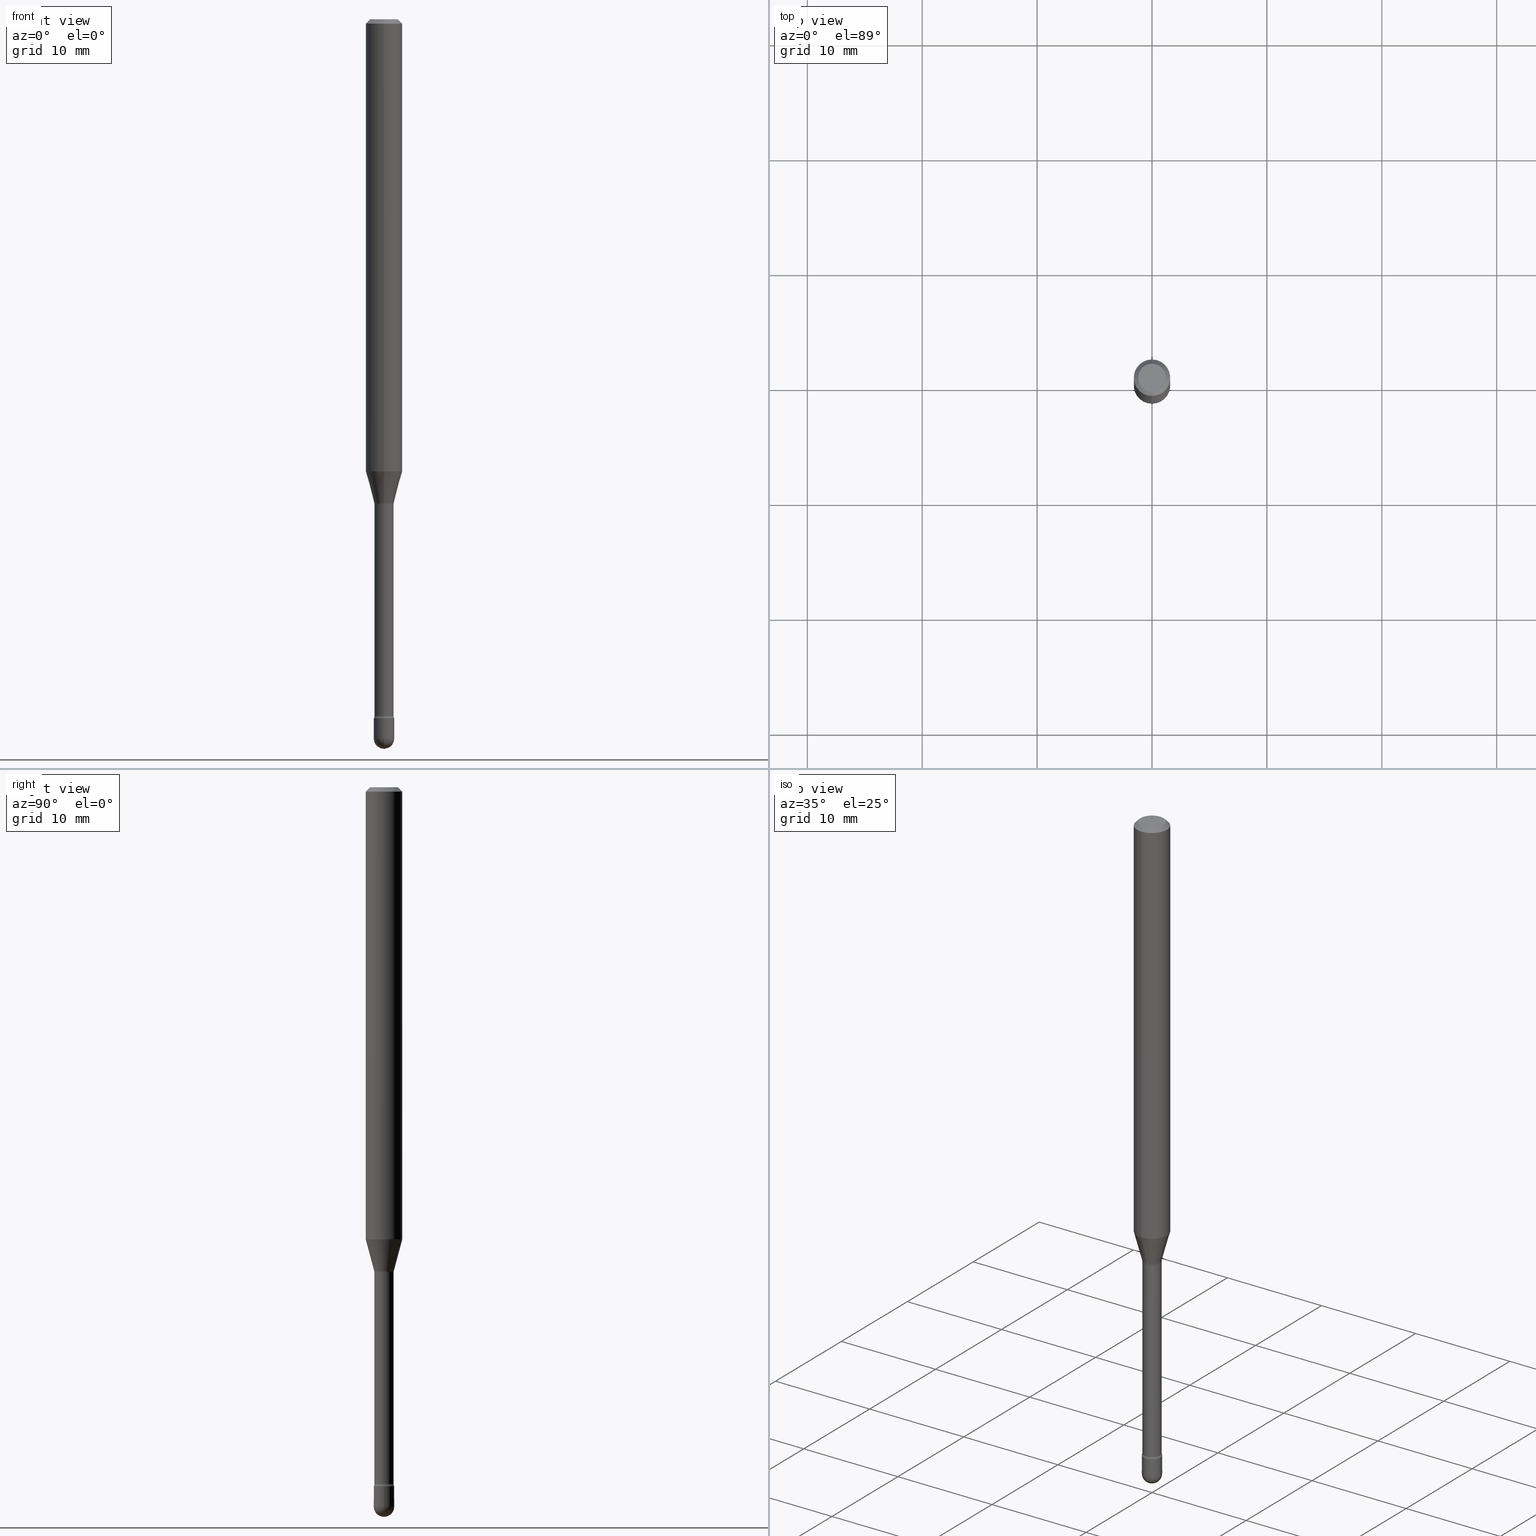
[diagram: canonical four-view strip — front | top / right | iso, engineering-drawing reading convention]
A machine part, canonical four-view strip (front | top / right | iso — engineering-drawing reading convention). The complete STEP part file that produces these views, byte-faithful:
ISO-10303-21;
HEADER;
FILE_DESCRIPTION (( 'STEP AP203' ),
    '1' );
FILE_NAME ('09511.STEP',
    '2024-04-10T00:04:07',
    ( '' ),
    ( '' ),
    'SwSTEP 2.0',
    'SolidWorks 2023',
    '' );
FILE_SCHEMA (( 'CONFIG_CONTROL_DESIGN' ));
ENDSEC;

DATA;
#1 = ORIENTED_EDGE ( 'NONE', *, *, #18, .T. ) ;
#2 = DIRECTION ( 'NONE',  ( 1.000000000000000000, -6.982962677686248567E-15, 0.000000000000000000 ) ) ;
#3 = EDGE_LOOP ( 'NONE', ( #102, #241, #486, #42 ) ) ;
#4 = EDGE_CURVE ( 'NONE', #137, #523, #278, .T. ) ;
#5 = EDGE_LOOP ( 'NONE', ( #397, #381, #75, #361 ) ) ;
#6 = FACE_OUTER_BOUND ( 'NONE', #318, .T. ) ;
#7 = DIRECTION ( 'NONE',  ( -6.982962677686265133E-15, -1.000000000000000000, 3.491411876045848246E-15 ) ) ;
#8 = DIRECTION ( 'NONE',  ( 1.000000000000000000, -6.982962677686265922E-15, 4.876176775795936353E-29 ) ) ;
#9 = EDGE_LOOP ( 'NONE', ( #357, #354, #50, #445 ) ) ;
#10 = DIRECTION ( 'NONE',  ( -2.445468806185136597E-29, 3.491481338843145583E-15, 1.000000000000000000 ) ) ;
#11 = DIRECTION ( 'NONE',  ( -6.982962677686265133E-15, -1.000000000000000000, 0.000000000000000000 ) ) ;
#12 = AXIS2_PLACEMENT_3D ( 'NONE', #213, #299, #253 ) ;
#13 = TOROIDAL_SURFACE ( 'NONE', #545, 0.04790000000000008834, 0.01500000000000003067 ) ;
#14 = APPROVAL_STATUS ( 'not_yet_approved' ) ;
#15 = DIRECTION ( 'NONE',  ( -2.445517311797238408E-29, 3.491411876045847852E-15, 1.000000000000000000 ) ) ;
#16 = DIRECTION ( 'NONE',  ( 1.000000000000000000, -6.982962677686248567E-15, 0.000000000000000000 ) ) ;
#17 = MANIFOLD_SOLID_BREP ( 'Body-Move/Copy2[1]', #116 ) ;
#18 = EDGE_CURVE ( 'NONE', #350, #392, #242, .T. ) ;
#19 = LINE ( 'NONE', #112, #465 ) ;
#20 = CIRCLE ( 'NONE', #220, 0.03290000000000006114 ) ;
#21 = AXIS2_PLACEMENT_3D ( 'NONE', #263, #80, #262 ) ;
#22 = CALENDAR_DATE ( 2024, 9, 4 ) ;
#23 = FACE_OUTER_BOUND ( 'NONE', #315, .T. ) ;
#24 = APPROVAL_ROLE ( '' ) ;
#25 = CARTESIAN_POINT ( 'NONE',  ( 4.440892098501006787E-16, 0.06249999999999995143, -0.01500000000000030129 ) ) ;
#26 = CARTESIAN_POINT ( 'NONE',  ( -3.773273898774340269E-16, -0.04749999999999999362, 8.309173255776074692E-17 ) ) ;
#27 = EDGE_CURVE ( 'NONE', #350, #481, #530, .T. ) ;
#28 = CIRCLE ( 'NONE', #373, 0.03500000000000000333 ) ;
#29 = ADVANCED_FACE ( 'NONE', ( #325 ), #152, .T. ) ;
#30 = CARTESIAN_POINT ( 'NONE',  ( -4.364351673553912750E-16, -0.06250000000000005551, -0.01499999999999986587 ) ) ;
#31 = APPROVAL ( #542, 'UNSPECIFIED' ) ;
#32 = CARTESIAN_POINT ( 'NONE',  ( 4.054893917681971331E-29, -5.789083852322656462E-15, -1.658092501787273410 ) ) ;
#33 = PLANE ( 'NONE',  #45 ) ;
#34 = EDGE_CURVE ( 'NONE', #324, #134, #296, .T. ) ;
#35 = AXIS2_PLACEMENT_3D ( 'NONE', #304, #270, #387 ) ;
#36 = CIRCLE ( 'NONE', #473, 0.04749999999999999362 ) ;
#37 = CARTESIAN_POINT ( 'NONE',  ( 2.337685600651315741E-16, 0.03289999999999419777, -1.661974787463811332 ) ) ;
#38 = VECTOR ( 'NONE', #182, 39.37007874015748143 ) ;
#39 = ORIENTED_EDGE ( 'NONE', *, *, #223, .T. ) ;
#40 = CARTESIAN_POINT ( 'NONE',  ( 2.444036937190796729E-16, 0.03499999999999140604, -2.464999999999999858 ) ) ;
#41 =( NAMED_UNIT ( * ) SI_UNIT ( $, .STERADIAN. ) SOLID_ANGLE_UNIT ( ) );
#42 = ORIENTED_EDGE ( 'NONE', *, *, #500, .F. ) ;
#43 = EDGE_CURVE ( 'NONE', #535, #137, #343, .T. ) ;
#44 = AXIS2_PLACEMENT_3D ( 'NONE', #257, #421, #371 ) ;
#45 = AXIS2_PLACEMENT_3D ( 'NONE', #517, #218, #388 ) ;
#46 = DIRECTION ( 'NONE',  ( -6.982962677686265922E-15, -1.000000000000000000, 3.491411876045847458E-15 ) ) ;
#47 = EDGE_CURVE ( 'NONE', #392, #311, #28, .T. ) ;
#48 = VERTEX_POINT ( 'NONE', #282 ) ;
#49 = MECHANICAL_CONTEXT ( 'NONE', #463, 'mechanical' ) ;
#50 = ORIENTED_EDGE ( 'NONE', *, *, #539, .T. ) ;
#51 = DIRECTION ( 'NONE',  ( -6.982962677686266711E-15, -1.000000000000000000, 3.491411876045848246E-15 ) ) ;
#52 = EDGE_LOOP ( 'NONE', ( #195, #235, #436, #287 ) ) ;
#53 = ORIENTED_EDGE ( 'NONE', *, *, #476, .F. ) ;
#54 =( NAMED_UNIT ( * ) PLANE_ANGLE_UNIT ( ) SI_UNIT ( $, .RADIAN. ) );
#55 = ORIENTED_EDGE ( 'NONE', *, *, #244, .T. ) ;
#56 = EDGE_CURVE ( 'NONE', #490, #284, #430, .T. ) ;
#57 = DIRECTION ( 'NONE',  ( -2.445517311797238408E-29, 3.491411876045847852E-15, 1.000000000000000000 ) ) ;
#58 = APPLICATION_PROTOCOL_DEFINITION ( 'international standard', 'config_control_design', 1994, #552 ) ;
#59 = ORIENTED_EDGE ( 'NONE', *, *, #395, .T. ) ;
#60 = DIRECTION ( 'NONE',  ( -2.445517311797238408E-29, 3.491411876045847852E-15, 1.000000000000000000 ) ) ;
#61 = AXIS2_PLACEMENT_3D ( 'NONE', #248, #424, #556 ) ;
#62 = CC_DESIGN_APPROVAL ( #31, ( #440 ) ) ;
#63 = COORDINATED_UNIVERSAL_TIME_OFFSET ( 5, 0, .BEHIND. ) ;
#64 = PLANE ( 'NONE',  #484 ) ;
#65 = PERSON_AND_ORGANIZATION ( #328, #240 ) ;
#66 = CARTESIAN_POINT ( 'NONE',  ( 3.789405609774286933E-29, -5.410051969494155627E-15, -1.549531296095961519 ) ) ;
#67 = CC_DESIGN_PERSON_AND_ORGANIZATION_ASSIGNMENT ( #378, #289, ( #431 ) ) ;
#68 = CARTESIAN_POINT ( 'NONE',  ( 5.838294968381408865E-29, -8.335206743429354077E-15, -2.387345589506696175 ) ) ;
#69 = AXIS2_PLACEMENT_3D ( 'NONE', #368, #288, #16 ) ;
#70 = CARTESIAN_POINT ( 'NONE',  ( 5.857013961754386162E-29, -8.361931443129805162E-15, -2.395000000000000018 ) ) ;
#71 = LINE ( 'NONE', #74, #531 ) ;
#72 = ADVANCED_FACE ( 'NONE', ( #189 ), #329, .T. ) ;
#73 = ADVANCED_FACE ( 'NONE', ( #323 ), #91, .T. ) ;
#74 = CARTESIAN_POINT ( 'NONE',  ( -4.287811248607203282E-16, -0.06250000000000005551, -0.01499999999999986587 ) ) ;
#75 = ORIENTED_EDGE ( 'NONE', *, *, #455, .T. ) ;
#76 = AXIS2_PLACEMENT_3D ( 'NONE', #185, #15, #46 ) ;
#77 = AXIS2_PLACEMENT_3D ( 'NONE', #87, #510, #130 ) ;
#78 = DIRECTION ( 'NONE',  ( -2.445517311797238408E-29, 3.491411876045847852E-15, 1.000000000000000000 ) ) ;
#79 = EDGE_CURVE ( 'NONE', #525, #481, #302, .T. ) ;
#80 = DIRECTION ( 'NONE',  ( -2.445517311797238408E-29, 3.491411876045847852E-15, 1.000000000000000000 ) ) ;
#81 = SPHERICAL_SURFACE ( 'NONE', #144, 0.03500000000000001721 ) ;
#82 = ORIENTED_EDGE ( 'NONE', *, *, #178, .F. ) ;
#83 = AXIS2_PLACEMENT_3D ( 'NONE', #376, #168, #550 ) ;
#84 = VECTOR ( 'NONE', #349, 39.37007874015748143 ) ;
#85 = DIRECTION ( 'NONE',  ( 6.982962677686265922E-15, 1.000000000000000000, 0.000000000000000000 ) ) ;
#86 = ORIENTED_EDGE ( 'NONE', *, *, #207, .F. ) ;
#87 = CARTESIAN_POINT ( 'NONE',  ( 6.028080607246362204E-29, -8.606501500248354960E-15, -2.464999999999999858 ) ) ;
#88 = EDGE_CURVE ( 'NONE', #520, #406, #364, .T. ) ;
#89 = ORIENTED_EDGE ( 'NONE', *, *, #43, .T. ) ;
#90 = DIRECTION ( 'NONE',  ( -2.445517311797238408E-29, 3.491411876045847852E-15, 1.000000000000000000 ) ) ;
#91 = CYLINDRICAL_SURFACE ( 'NONE', #76, 0.06250000000000000000 ) ;
#92 = ORIENTED_EDGE ( 'NONE', *, *, #300, .F. ) ;
#93 = PRODUCT ( '09511', '09511', '', ( #49 ) ) ;
#94 = AXIS2_PLACEMENT_3D ( 'NONE', #379, #551, #377 ) ;
#95 = AXIS2_PLACEMENT_3D ( 'NONE', #435, #215, #386 ) ;
#96 = CARTESIAN_POINT ( 'NONE',  ( 2.374002335562130443E-16, 0.03341111260565819002, -1.658092501787273410 ) ) ;
#97 = CLOSED_SHELL ( 'NONE', ( #442, #216, #548, #226, #162, #133, #422, #73, #72, #136, #460, #317, #480, #493 ) ) ;
#98 = ORIENTED_EDGE ( 'NONE', *, *, #4, .F. ) ;
#99 = ADVANCED_FACE ( 'NONE', ( #200 ), #193, .T. ) ;
#100 = CARTESIAN_POINT ( 'NONE',  ( 6.028080607246362204E-29, -8.606501500248354960E-15, -2.464999999999999858 ) ) ;
#101 = APPROVAL ( #14, 'UNSPECIFIED' ) ;
#102 = ORIENTED_EDGE ( 'NONE', *, *, #404, .T. ) ;
#103 = DIRECTION ( 'NONE',  ( 1.000000000000000000, -6.982962677686265922E-15, 4.876176775795935793E-29 ) ) ;
#104 = CARTESIAN_POINT ( 'NONE',  ( -2.333085523452841648E-16, -0.03341111260566976410, -1.658092501787273410 ) ) ;
#105 = DIRECTION ( 'NONE',  ( -6.982962677686266711E-15, -1.000000000000000000, 0.000000000000000000 ) ) ;
#106 = AXIS2_PLACEMENT_3D ( 'NONE', #413, #60, #522 ) ;
#107 = CIRCLE ( 'NONE', #297, 0.06250000000000000000 ) ;
#108 = DATE_AND_TIME ( #546, #555 ) ;
#109 = DIRECTION ( 'NONE',  ( -6.982962677686266711E-15, -1.000000000000000000, 3.491411876045848246E-15 ) ) ;
#110 = EDGE_CURVE ( 'NONE', #137, #535, #275, .T. ) ;
#111 = COORDINATED_UNIVERSAL_TIME_OFFSET ( 5, 0, .BEHIND. ) ;
#112 = CARTESIAN_POINT ( 'NONE',  ( 4.364351673553919652E-16, 0.06249999999999995143, -0.01500000000000030129 ) ) ;
#113 = FACE_OUTER_BOUND ( 'NONE', #518, .T. ) ;
#114 = AXIS2_PLACEMENT_3D ( 'NONE', #491, #483, #103 ) ;
#115 = CIRCLE ( 'NONE', #155, 0.03289999999999999869 ) ;
#116 = CLOSED_SHELL ( 'NONE', ( #305, #380, #99, #433, #29 ) ) ;
#117 = ORIENTED_EDGE ( 'NONE', *, *, #495, .T. ) ;
#118 = CALENDAR_DATE ( 2024, 9, 4 ) ;
#119 = DIRECTION ( 'NONE',  ( -2.445517311797238408E-29, 3.491411876045847852E-15, 1.000000000000000000 ) ) ;
#120 = CC_DESIGN_PERSON_AND_ORGANIZATION_ASSIGNMENT ( #283, #449, ( #93 ) ) ;
#121 = EDGE_LOOP ( 'NONE', ( #352, #55, #117, #166 ) ) ;
#122 = APPROVAL_DATE_TIME ( #506, #31 ) ;
#123 = DIRECTION ( 'NONE',  ( -2.445468806185136597E-29, 3.491481338843145583E-15, 1.000000000000000000 ) ) ;
#124 = DESIGN_CONTEXT ( 'detailed design', #552, 'design' ) ;
#125 = ORIENTED_EDGE ( 'NONE', *, *, #34, .F. ) ;
#126 = CARTESIAN_POINT ( 'NONE',  ( 6.028080607246362204E-29, -8.606501500248354960E-15, -2.464999999999999858 ) ) ;
#127 = CIRCLE ( 'NONE', #389, 0.03500000000000000333 ) ;
#128 = APPROVAL_PERSON_ORGANIZATION ( #382, #444, #252 ) ;
#129 = CARTESIAN_POINT ( 'NONE',  ( 5.838294968381408865E-29, -8.335206743429354077E-15, -2.387345589506696175 ) ) ;
#130 = DIRECTION ( 'NONE',  ( 6.982962677686265922E-15, 1.000000000000000000, 0.000000000000000000 ) ) ;
#131 = EDGE_LOOP ( 'NONE', ( #488, #529, #314, #477 ) ) ;
#132 = FACE_OUTER_BOUND ( 'NONE', #5, .T. ) ;
#133 = ADVANCED_FACE ( 'NONE', ( #370 ), #286, .T. ) ;
#134 = VERTEX_POINT ( 'NONE', #454 ) ;
#135 = EDGE_LOOP ( 'NONE', ( #447, #313 ) ) ;
#136 = ADVANCED_FACE ( 'NONE', ( #6 ), #64, .F. ) ;
#137 = VERTEX_POINT ( 'NONE', #138 ) ;
#138 = CARTESIAN_POINT ( 'NONE',  ( 3.407447217031568368E-16, 0.03341111260565819002, -1.658092501787273410 ) ) ;
#139 = EDGE_LOOP ( 'NONE', ( #224, #179, #402, #1, #151 ) ) ;
#140 = CARTESIAN_POINT ( 'NONE',  ( 2.023905576161309762E-45, -2.888822820202223953E-31, -8.275033155441702606E-17 ) ) ;
#141 = EDGE_CURVE ( 'NONE', #48, #350, #127, .T. ) ;
#142 = VERTEX_POINT ( 'NONE', #30 ) ;
#143 = FACE_OUTER_BOUND ( 'NONE', #267, .T. ) ;
#144 = AXIS2_PLACEMENT_3D ( 'NONE', #126, #427, #85 ) ;
#145 = ORIENTED_EDGE ( 'NONE', *, *, #197, .F. ) ;
#146 = AXIS2_PLACEMENT_3D ( 'NONE', #528, #10, #2 ) ;
#147 = CARTESIAN_POINT ( 'NONE',  ( 0.000000000000000000, 0.000000000000000000, 0.000000000000000000 ) ) ;
#148 = DIRECTION ( 'NONE',  ( 1.000000000000000000, 0.000000000000000000, 0.000000000000000000 ) ) ;
#149 = ORIENTED_EDGE ( 'NONE', *, *, #244, .F. ) ;
#150 = DIRECTION ( 'NONE',  ( -2.445468806185136877E-29, 3.491481338843145188E-15, 1.000000000000000000 ) ) ;
#151 = ORIENTED_EDGE ( 'NONE', *, *, #513, .F. ) ;
#152 = CYLINDRICAL_SURFACE ( 'NONE', #496, 0.03500000000000000333 ) ;
#153 = CARTESIAN_POINT ( 'NONE',  ( -1.169113584055446105E-44, 1.669184350826100908E-30, 4.780733988912460139E-16 ) ) ;
#154 = CIRCLE ( 'NONE', #12, 0.06250000000000000000 ) ;
#155 = AXIS2_PLACEMENT_3D ( 'NONE', #428, #176, #222 ) ;
#156 = CARTESIAN_POINT ( 'NONE',  ( 2.486899575160936616E-16, 0.03499999999999165584, -2.395000000000000018 ) ) ;
#157 = PRODUCT_DEFINITION_SHAPE ( 'NONE', 'NONE',  #201 ) ;
#158 = DIRECTION ( 'NONE',  ( 4.937700262164548042E-15, 0.7071067811865451302, -0.7071067811865499042 ) ) ;
#159 = EDGE_CURVE ( 'NONE', #324, #142, #71, .T. ) ;
#160 = APPROVAL_ROLE ( '' ) ;
#161 = DIRECTION ( 'NONE',  ( 6.982962677686265922E-15, 1.000000000000000000, -3.483106191921935554E-15 ) ) ;
#162 = ADVANCED_FACE ( 'NONE', ( #113 ), #501, .T. ) ;
#163 = UNCERTAINTY_MEASURE_WITH_UNIT (LENGTH_MEASURE( 1.000000000000000082E-05 ), #233, 'distance_accuracy_value', 'NONE');
#164 = VECTOR ( 'NONE', #446, 39.37007874015748143 ) ;
#165 = VECTOR ( 'NONE', #273, 39.37007874015748854 ) ;
#166 = ORIENTED_EDGE ( 'NONE', *, *, #395, .F. ) ;
#167 = PERSON_AND_ORGANIZATION ( #328, #240 ) ;
#168 = DIRECTION ( 'NONE',  ( -2.445517311797238408E-29, 3.491411876045847852E-15, 1.000000000000000000 ) ) ;
#169 = CARTESIAN_POINT ( 'NONE',  ( 4.064307499408922751E-29, -5.802753956057700708E-15, -1.661974787463811332 ) ) ;
#170 = CC_DESIGN_PERSON_AND_ORGANIZATION_ASSIGNMENT ( #245, #202, ( #201 ) ) ;
#171 = DIRECTION ( 'NONE',  ( -6.982962677686266711E-15, -1.000000000000000000, 0.000000000000000000 ) ) ;
#172 = CIRCLE ( 'NONE', #35, 0.01500000000000001853 ) ;
#173 = AXIS2_PLACEMENT_3D ( 'NONE', #347, #308, #312 ) ;
#174 = LINE ( 'NONE', #346, #84 ) ;
#175 = VERTEX_POINT ( 'NONE', #333 ) ;
#176 = DIRECTION ( 'NONE',  ( -2.445517311797238408E-29, 3.491411876045847852E-15, 1.000000000000000000 ) ) ;
#177 = ORIENTED_EDGE ( 'NONE', *, *, #264, .T. ) ;
#178 = EDGE_CURVE ( 'NONE', #554, #523, #154, .T. ) ;
#179 = ORIENTED_EDGE ( 'NONE', *, *, #537, .T. ) ;
#180 = AXIS2_PLACEMENT_3D ( 'NONE', #285, #540, #401 ) ;
#181 = AXIS2_PLACEMENT_3D ( 'NONE', #169, #412, #7 ) ;
#182 = DIRECTION ( 'NONE',  ( -2.445517311797238688E-29, 3.491411876045848246E-15, 1.000000000000000000 ) ) ;
#183 = ORIENTED_EDGE ( 'NONE', *, *, #199, .T. ) ;
#184 = CARTESIAN_POINT ( 'NONE',  ( -2.297394720958374770E-16, -0.03290000000000579961, -1.661974787463811332 ) ) ;
#185 = CARTESIAN_POINT ( 'NONE',  ( -1.169113584055446105E-44, 1.669184350826100908E-30, 4.780733988912460139E-16 ) ) ;
#186 = ORIENTED_EDGE ( 'NONE', *, *, #110, .T. ) ;
#187 = CARTESIAN_POINT ( 'NONE',  ( 6.115168556468905002E-29, -8.726560215209356888E-15, -2.500000000000000000 ) ) ;
#188 = ORIENTED_EDGE ( 'NONE', *, *, #557, .T. ) ;
#189 = FACE_OUTER_BOUND ( 'NONE', #372, .T. ) ;
#190 = ORIENTED_EDGE ( 'NONE', *, *, #508, .T. ) ;
#191 = CARTESIAN_POINT ( 'NONE',  ( -4.364351673553540013E-16, -0.06250000000000544009, -1.549531296095961297 ) ) ;
#192 = CC_DESIGN_APPROVAL ( #444, ( #431 ) ) ;
#193 = PLANE ( 'NONE',  #114 ) ;
#194 = CARTESIAN_POINT ( 'NONE',  ( 5.856897790813402508E-29, -8.362097806529333416E-15, -2.395000000000000018 ) ) ;
#195 = ORIENTED_EDGE ( 'NONE', *, *, #79, .F. ) ;
#196 = ORIENTED_EDGE ( 'NONE', *, *, #260, .F. ) ;
#197 = EDGE_CURVE ( 'NONE', #284, #274, #410, .T. ) ;
#198 = DATE_TIME_ROLE ( 'classification_date' ) ;
#199 = EDGE_CURVE ( 'NONE', #134, #324, #36, .T. ) ;
#200 = FACE_OUTER_BOUND ( 'NONE', #135, .T. ) ;
#201 = PRODUCT_DEFINITION ( 'UNKNOWN', '', #431, #124 ) ;
#202 = PERSON_AND_ORGANIZATION_ROLE ( 'creator' ) ;
#203 = LINE ( 'NONE', #547, #439 ) ;
#204 = CIRCLE ( 'NONE', #383, 0.06250000000000000000 ) ;
#205 = LOCAL_TIME ( 20, 4, 7.000000000000000000, #456 ) ;
#206 = CYLINDRICAL_SURFACE ( 'NONE', #94, 0.03500000000000000333 ) ;
#207 = EDGE_CURVE ( 'NONE', #348, #274, #309, .T. ) ;
#208 = SHAPE_DEFINITION_REPRESENTATION ( #157, #227 ) ;
#209 = DIRECTION ( 'NONE',  ( -2.445468806185136877E-29, 3.491481338843145188E-15, 1.000000000000000000 ) ) ;
#210 = MANIFOLD_SOLID_BREP ( 'Body-Move/Copy2[2]', #97 ) ;
#211 = EDGE_LOOP ( 'NONE', ( #145, #355 ) ) ;
#212 = CALENDAR_DATE ( 2024, 9, 4 ) ;
#213 = CARTESIAN_POINT ( 'NONE',  ( 3.789405609774286933E-29, -5.410051969494155627E-15, -1.549531296095961519 ) ) ;
#214 = CIRCLE ( 'NONE', #61, 0.03500000000000001721 ) ;
#215 = DIRECTION ( 'NONE',  ( -2.445468806185136597E-29, 3.491481338843145583E-15, 1.000000000000000000 ) ) ;
#216 = ADVANCED_FACE ( 'NONE', ( #295 ), #384, .T. ) ;
#217 = DIRECTION ( 'NONE',  ( -2.445517311797238408E-29, 3.491411876045847852E-15, 1.000000000000000000 ) ) ;
#218 = DIRECTION ( 'NONE',  ( -2.445517311797237847E-29, 3.491411876045848246E-15, 1.000000000000000000 ) ) ;
#219 = VECTOR ( 'NONE', #150, 39.37007874015748143 ) ;
#220 = AXIS2_PLACEMENT_3D ( 'NONE', #68, #250, #419 ) ;
#221 = CIRCLE ( 'NONE', #398, 0.03290000000000006114 ) ;
#222 = DIRECTION ( 'NONE',  ( -6.982962677686265133E-15, -1.000000000000000000, 0.000000000000000000 ) ) ;
#223 = EDGE_CURVE ( 'NONE', #274, #284, #351, .T. ) ;
#224 = ORIENTED_EDGE ( 'NONE', *, *, #264, .F. ) ;
#225 = CARTESIAN_POINT ( 'NONE',  ( -2.297394720958201714E-16, -0.03290000000000839475, -2.387345589506696175 ) ) ;
#226 = ADVANCED_FACE ( 'NONE', ( #543 ), #251, .T. ) ;
#227 = ADVANCED_BREP_SHAPE_REPRESENTATION ( '09511', ( #17, #210, #562 ), #276 ) ;
#228 = ORIENTED_EDGE ( 'NONE', *, *, #260, .T. ) ;
#229 = VERTEX_POINT ( 'NONE', #25 ) ;
#230 = ORIENTED_EDGE ( 'NONE', *, *, #495, .F. ) ;
#231 = AXIS2_PLACEMENT_3D ( 'NONE', #100, #479, #246 ) ;
#232 = VECTOR ( 'NONE', #396, 39.37007874015748143 ) ;
#233 =( CONVERSION_BASED_UNIT ( 'INCH', #437 ) LENGTH_UNIT ( ) NAMED_UNIT ( #563 ) );
#234 = CARTESIAN_POINT ( 'NONE',  ( 3.668275967695877755E-31, -5.237117814068800744E-17, -0.01500000000000008271 ) ) ;
#235 = ORIENTED_EDGE ( 'NONE', *, *, #243, .T. ) ;
#236 = DIRECTION ( 'NONE',  ( 2.445517311797237847E-29, -3.491411876045848246E-15, -1.000000000000000000 ) ) ;
#237 = ORIENTED_EDGE ( 'NONE', *, *, #363, .F. ) ;
#238 = CARTESIAN_POINT ( 'NONE',  ( 4.064388114513286773E-29, -5.802638510639924192E-15, -1.661974787463811332 ) ) ;
#239 = PERSON_AND_ORGANIZATION ( #328, #240 ) ;
#240 = ORGANIZATION ( 'UNSPECIFIED', 'UNSPECIFIED', '' ) ;
#241 = ORIENTED_EDGE ( 'NONE', *, *, #476, .T. ) ;
#242 = LINE ( 'NONE', #536, #219 ) ;
#243 = EDGE_CURVE ( 'NONE', #525, #48, #214, .T. ) ;
#244 = EDGE_CURVE ( 'NONE', #523, #554, #204, .T. ) ;
#245 = PERSON_AND_ORGANIZATION ( #328, #240 ) ;
#246 = DIRECTION ( 'NONE',  ( 6.982962677686265922E-15, 1.000000000000000000, 0.000000000000000000 ) ) ;
#247 = CC_DESIGN_DATE_AND_TIME_ASSIGNMENT ( #374, #198, ( #440 ) ) ;
#248 = CARTESIAN_POINT ( 'NONE',  ( 6.028080607246362204E-29, -8.606501500248354960E-15, -2.464999999999999858 ) ) ;
#249 = APPROVAL_DATE_TIME ( #452, #101 ) ;
#250 = DIRECTION ( 'NONE',  ( -2.445517311797238408E-29, 3.491411876045847852E-15, 1.000000000000000000 ) ) ;
#251 = CONICAL_SURFACE ( 'NONE', #294, 0.06250000000000000000, 0.7853981633974483900 ) ;
#252 = APPROVAL_ROLE ( '' ) ;
#253 = DIRECTION ( 'NONE',  ( -6.982962677686265922E-15, -1.000000000000000000, 4.370956789862821150E-15 ) ) ;
#254 = EDGE_LOOP ( 'NONE', ( #125, #434, #474, #196 ) ) ;
#255 = DIRECTION ( 'NONE',  ( 2.445517311797238408E-29, -3.491411876045847852E-15, -1.000000000000000000 ) ) ;
#256 = ORIENTED_EDGE ( 'NONE', *, *, #199, .F. ) ;
#257 = CARTESIAN_POINT ( 'NONE',  ( -1.169113584055446105E-44, 1.669184350826100908E-30, 4.780733988912460139E-16 ) ) ;
#258 = AXIS2_PLACEMENT_3D ( 'NONE', #238, #526, #11 ) ;
#259 = TOROIDAL_SURFACE ( 'NONE', #21, 0.04789999999999999813, 0.01500000000000002373 ) ;
#260 = EDGE_CURVE ( 'NONE', #134, #229, #19, .T. ) ;
#261 = FACE_OUTER_BOUND ( 'NONE', #423, .T. ) ;
#262 = DIRECTION ( 'NONE',  ( -6.982962677686265133E-15, -1.000000000000000000, 3.491411876045848246E-15 ) ) ;
#263 = CARTESIAN_POINT ( 'NONE',  ( 4.064307499408922751E-29, -5.802753956057700708E-15, -1.661974787463811332 ) ) ;
#264 = EDGE_CURVE ( 'NONE', #175, #311, #203, .T. ) ;
#265 = AXIS2_PLACEMENT_3D ( 'NONE', #358, #327, #105 ) ;
#266 = AXIS2_PLACEMENT_3D ( 'NONE', #32, #217, #171 ) ;
#267 = EDGE_LOOP ( 'NONE', ( #92, #453, #39, #408 ) ) ;
#268 = CARTESIAN_POINT ( 'NONE',  ( 3.668275967695877755E-31, -5.237117814068800744E-17, -0.01500000000000008271 ) ) ;
#269 = ORIENTED_EDGE ( 'NONE', *, *, #508, .F. ) ;
#270 = DIRECTION ( 'NONE',  ( 1.000000000000000000, -7.105427357601001070E-15, 4.926314657868158942E-29 ) ) ;
#271 = EDGE_LOOP ( 'NONE', ( #53, #399, #441, #432 ) ) ;
#272 = DIRECTION ( 'NONE',  ( -6.982962677686265922E-15, -1.000000000000000000, 3.491411876045847852E-15 ) ) ;
#273 = DIRECTION ( 'NONE',  ( 1.839019923739595582E-15, 0.2588190451025242922, 0.9659258262890673130 ) ) ;
#274 = VERTEX_POINT ( 'NONE', #156 ) ;
#275 = CIRCLE ( 'NONE', #180, 0.03341111260566397706 ) ;
#276 =( GEOMETRIC_REPRESENTATION_CONTEXT ( 3 ) GLOBAL_UNCERTAINTY_ASSIGNED_CONTEXT ( ( #163 ) ) GLOBAL_UNIT_ASSIGNED_CONTEXT ( ( #233, #54, #41 ) ) REPRESENTATION_CONTEXT ( 'NONE', 'WORKASPACE' ) );
#277 = APPLICATION_PROTOCOL_DEFINITION ( 'international standard', 'config_control_design', 1994, #463 ) ;
#278 = LINE ( 'NONE', #96, #165 ) ;
#279 = ORIENTED_EDGE ( 'NONE', *, *, #56, .T. ) ;
#280 = LINE ( 'NONE', #369, #232 ) ;
#281 = ORIENTED_EDGE ( 'NONE', *, *, #472, .T. ) ;
#282 = CARTESIAN_POINT ( 'NONE',  ( -2.486899575159748395E-16, -0.03500000000000861450, -2.464999999999999858 ) ) ;
#283 = PERSON_AND_ORGANIZATION ( #328, #240 ) ;
#284 = VERTEX_POINT ( 'NONE', #340 ) ;
#285 = CARTESIAN_POINT ( 'NONE',  ( 4.054893917681971331E-29, -5.789083852322656462E-15, -1.658092501787273410 ) ) ;
#286 = CONICAL_SURFACE ( 'NONE', #265, 0.03341111260566397706, 0.2617993877991495744 ) ;
#287 = ORIENTED_EDGE ( 'NONE', *, *, #472, .F. ) ;
#288 = DIRECTION ( 'NONE',  ( -2.445468806185136597E-29, 3.491481338843145583E-15, 1.000000000000000000 ) ) ;
#289 = PERSON_AND_ORGANIZATION_ROLE ( 'creator' ) ;
#290 = DIRECTION ( 'NONE',  ( -2.445517311797238408E-29, 3.491411876045847852E-15, 1.000000000000000000 ) ) ;
#291 = DIRECTION ( 'NONE',  ( 7.105427357601001859E-15, 1.000000000000000000, 0.000000000000000000 ) ) ;
#292 = CC_DESIGN_DATE_AND_TIME_ASSIGNMENT ( #108, #330, ( #201 ) ) ;
#293 = COORDINATED_UNIVERSAL_TIME_OFFSET ( 5, 0, .BEHIND. ) ;
#294 = AXIS2_PLACEMENT_3D ( 'NONE', #332, #255, #161 ) ;
#295 = FACE_OUTER_BOUND ( 'NONE', #3, .T. ) ;
#296 = CIRCLE ( 'NONE', #502, 0.04749999999999999362 ) ;
#297 = AXIS2_PLACEMENT_3D ( 'NONE', #268, #78, #429 ) ;
#298 = DIRECTION ( 'NONE',  ( -6.982962677686265922E-15, -1.000000000000000000, 4.370956789862821150E-15 ) ) ;
#299 = DIRECTION ( 'NONE',  ( -2.445517311797238408E-29, 3.491411876045847852E-15, 1.000000000000000000 ) ) ;
#300 = EDGE_CURVE ( 'NONE', #348, #490, #20, .T. ) ;
#301 = DIRECTION ( 'NONE',  ( -6.982962677686265922E-15, -1.000000000000000000, 3.491411876045847852E-15 ) ) ;
#302 = CIRCLE ( 'NONE', #231, 0.03500000000000001721 ) ;
#303 = APPROVAL_PERSON_ORGANIZATION ( #239, #101, #160 ) ;
#304 = CARTESIAN_POINT ( 'NONE',  ( 3.403499704291285528E-16, 0.04789999999999419028, -1.661974787463811554 ) ) ;
#305 = ADVANCED_FACE ( 'NONE', ( #23 ), #206, .T. ) ;
#306 = FACE_OUTER_BOUND ( 'NONE', #131, .T. ) ;
#307 = ORIENTED_EDGE ( 'NONE', *, *, #197, .T. ) ;
#308 = DIRECTION ( 'NONE',  ( -2.445517311797238408E-29, 3.491411876045847852E-15, 1.000000000000000000 ) ) ;
#309 = CIRCLE ( 'NONE', #544, 0.01500000000000002720 ) ;
#310 = LOCAL_TIME ( 20, 4, 7.000000000000000000, #293 ) ;
#311 = VERTEX_POINT ( 'NONE', #335 ) ;
#312 = DIRECTION ( 'NONE',  ( -6.982962677686266711E-15, -1.000000000000000000, 3.491411876045845880E-15 ) ) ;
#313 = ORIENTED_EDGE ( 'NONE', *, *, #513, .T. ) ;
#314 = ORIENTED_EDGE ( 'NONE', *, *, #27, .F. ) ;
#315 = EDGE_LOOP ( 'NONE', ( #281, #177, #450, #527, #533 ) ) ;
#316 = CARTESIAN_POINT ( 'NONE',  ( 6.028080607246362204E-29, -8.606501500248354960E-15, -2.464999999999999858 ) ) ;
#317 = ADVANCED_FACE ( 'NONE', ( #338 ), #509, .F. ) ;
#318 = EDGE_LOOP ( 'NONE', ( #183, #359 ) ) ;
#319 = DIRECTION ( 'NONE',  ( -6.982962677686267499E-15, -1.000000000000000000, 0.000000000000000000 ) ) ;
#320 = ORIENTED_EDGE ( 'NONE', *, *, #159, .F. ) ;
#321 = AXIS2_PLACEMENT_3D ( 'NONE', #466, #561, #469 ) ;
#322 = DIRECTION ( 'NONE',  ( -6.982962677686267499E-15, -1.000000000000000000, 0.000000000000000000 ) ) ;
#323 = FACE_OUTER_BOUND ( 'NONE', #121, .T. ) ;
#324 = VERTEX_POINT ( 'NONE', #26 ) ;
#325 = FACE_OUTER_BOUND ( 'NONE', #139, .T. ) ;
#326 = CARTESIAN_POINT ( 'NONE',  ( -4.364351673553916201E-16, -0.06250000000000000000, 6.962866411441115293E-16 ) ) ;
#327 = DIRECTION ( 'NONE',  ( -2.445517311797238408E-29, 3.491411876045847852E-15, 1.000000000000000000 ) ) ;
#328 = PERSON ( 'UNSPECIFIED', 'UNSPECIFIED', 'UNSPECIFIED', ('UNSPECIFIED'), ('UNSPECIFIED'), ('UNSPECIFIED') ) ;
#329 = CONICAL_SURFACE ( 'NONE', #425, 0.06250000000000000000, 0.7853981633974483900 ) ;
#330 = DATE_TIME_ROLE ( 'creation_date' ) ;
#331 = CONICAL_SURFACE ( 'NONE', #266, 0.03341111260566397706, 0.2617993877991495744 ) ;
#332 = CARTESIAN_POINT ( 'NONE',  ( 3.668275967695877755E-31, -5.237117814068800744E-17, -0.01500000000000008271 ) ) ;
#333 = CARTESIAN_POINT ( 'NONE',  ( -0.03500000000000000333, -8.235609695872808902E-15, -2.464999999999999858 ) ) ;
#334 = SECURITY_CLASSIFICATION_LEVEL ( 'unclassified' ) ;
#335 = CARTESIAN_POINT ( 'NONE',  ( -0.03500000000000000333, -8.235609695872808902E-15, -2.395000000000000018 ) ) ;
#336 = APPROVAL_STATUS ( 'not_yet_approved' ) ;
#337 = AXIS2_PLACEMENT_3D ( 'NONE', #405, #409, #319 ) ;
#338 = FACE_OUTER_BOUND ( 'NONE', #394, .T. ) ;
#339 = DATE_AND_TIME ( #22, #461 ) ;
#340 = CARTESIAN_POINT ( 'NONE',  ( -2.444036937189609493E-16, -0.03500000000000837858, -2.395000000000000018 ) ) ;
#341 = CARTESIAN_POINT ( 'NONE',  ( 2.412292587906127904E-16, 0.03289999999999172753, -2.387345589506696175 ) ) ;
#342 = SPHERICAL_SURFACE ( 'NONE', #77, 0.03500000000000001721 ) ;
#343 = CIRCLE ( 'NONE', #106, 0.03341111260566397706 ) ;
#344 = EDGE_CURVE ( 'NONE', #137, #406, #172, .T. ) ;
#345 = CIRCLE ( 'NONE', #411, 0.01500000000000001853 ) ;
#346 = CARTESIAN_POINT ( 'NONE',  ( 2.337685600650730998E-16, 0.03290000000000002645, 3.632059481693375614E-16 ) ) ;
#347 = CARTESIAN_POINT ( 'NONE',  ( -1.169113584055446105E-44, 1.669184350826100908E-30, 4.780733988912460139E-16 ) ) ;
#348 = VERTEX_POINT ( 'NONE', #341 ) ;
#349 = DIRECTION ( 'NONE',  ( -2.445517311797238688E-29, 3.491411876045848246E-15, 1.000000000000000000 ) ) ;
#350 = VERTEX_POINT ( 'NONE', #393 ) ;
#351 = CIRCLE ( 'NONE', #459, 0.03500000000000000333 ) ;
#352 = ORIENTED_EDGE ( 'NONE', *, *, #557, .F. ) ;
#353 = LINE ( 'NONE', #521, #503 ) ;
#354 = ORIENTED_EDGE ( 'NONE', *, *, #43, .F. ) ;
#355 = ORIENTED_EDGE ( 'NONE', *, *, #223, .F. ) ;
#356 = DIRECTION ( 'NONE',  ( -1.000000000000000000, 6.982962677686265922E-15, -4.883557194083112340E-29 ) ) ;
#357 = ORIENTED_EDGE ( 'NONE', *, *, #344, .F. ) ;
#358 = CARTESIAN_POINT ( 'NONE',  ( 4.054893917681971331E-29, -5.789083852322656462E-15, -1.658092501787273410 ) ) ;
#359 = ORIENTED_EDGE ( 'NONE', *, *, #34, .T. ) ;
#360 = DIRECTION ( 'NONE',  ( 1.000000000000000000, -6.982962677686276966E-15, 0.000000000000000000 ) ) ;
#361 = ORIENTED_EDGE ( 'NONE', *, *, #539, .F. ) ;
#362 = DIRECTION ( 'NONE',  ( -2.445468806185136597E-29, 3.491481338843145583E-15, 1.000000000000000000 ) ) ;
#363 = EDGE_CURVE ( 'NONE', #142, #229, #560, .T. ) ;
#364 = CIRCLE ( 'NONE', #258, 0.03289999999999999869 ) ;
#365 = CC_DESIGN_APPROVAL ( #101, ( #201 ) ) ;
#366 = DIRECTION ( 'NONE',  ( 0.000000000000000000, 0.000000000000000000, 1.000000000000000000 ) ) ;
#367 = ORIENTED_EDGE ( 'NONE', *, *, #4, .T. ) ;
#368 = CARTESIAN_POINT ( 'NONE',  ( 6.028080607246362204E-29, -8.606501500248354960E-15, -2.464999999999999858 ) ) ;
#369 = CARTESIAN_POINT ( 'NONE',  ( -2.297394720958783499E-16, -0.03290000000000002645, 5.929408496131545157E-16 ) ) ;
#370 = FACE_OUTER_BOUND ( 'NONE', #565, .T. ) ;
#371 = DIRECTION ( 'NONE',  ( -6.982962677686266711E-15, -1.000000000000000000, 3.491411876045845880E-15 ) ) ;
#372 = EDGE_LOOP ( 'NONE', ( #320, #256, #228, #59 ) ) ;
#373 = AXIS2_PLACEMENT_3D ( 'NONE', #451, #362, #448 ) ;
#374 = DATE_AND_TIME ( #118, #205 ) ;
#375 = LOCAL_TIME ( 20, 4, 7.000000000000000000, #63 ) ;
#376 = CARTESIAN_POINT ( 'NONE',  ( 5.857013961754386162E-29, -8.361931443129805162E-15, -2.395000000000000018 ) ) ;
#377 = DIRECTION ( 'NONE',  ( 1.000000000000000000, -6.982962677686265922E-15, 4.876176775795936353E-29 ) ) ;
#378 = PERSON_AND_ORGANIZATION ( #328, #240 ) ;
#379 = CARTESIAN_POINT ( 'NONE',  ( 0.000000000000000000, 0.000000000000000000, 0.000000000000000000 ) ) ;
#380 = ADVANCED_FACE ( 'NONE', ( #475 ), #81, .T. ) ;
#381 = ORIENTED_EDGE ( 'NONE', *, *, #344, .T. ) ;
#382 = PERSON_AND_ORGANIZATION ( #328, #240 ) ;
#383 = AXIS2_PLACEMENT_3D ( 'NONE', #66, #119, #298 ) ;
#384 = CYLINDRICAL_SURFACE ( 'NONE', #44, 0.03290000000000002645 ) ;
#385 = CC_DESIGN_SECURITY_CLASSIFICATION ( #440, ( #431 ) ) ;
#386 = DIRECTION ( 'NONE',  ( 1.000000000000000000, -6.982962677686248567E-15, 0.000000000000000000 ) ) ;
#387 = DIRECTION ( 'NONE',  ( 7.105427357601001859E-15, 1.000000000000000000, 0.000000000000000000 ) ) ;
#388 = DIRECTION ( 'NONE',  ( -6.982962677686265922E-15, -1.000000000000000000, 3.491411876045848246E-15 ) ) ;
#389 = AXIS2_PLACEMENT_3D ( 'NONE', #316, #123, #426 ) ;
#390 = AXIS2_PLACEMENT_3D ( 'NONE', #194, #403, #360 ) ;
#391 = FACE_OUTER_BOUND ( 'NONE', #211, .T. ) ;
#392 = VERTEX_POINT ( 'NONE', #514 ) ;
#393 = CARTESIAN_POINT ( 'NONE',  ( 0.03500000000000000333, -8.728703347107863365E-15, -2.464999999999999858 ) ) ;
#394 = EDGE_LOOP ( 'NONE', ( #86, #470, #279, #307 ) ) ;
#395 = EDGE_CURVE ( 'NONE', #229, #142, #107, .T. ) ;
#396 = DIRECTION ( 'NONE',  ( -2.445517311797238688E-29, 3.491411876045848246E-15, 1.000000000000000000 ) ) ;
#397 = ORIENTED_EDGE ( 'NONE', *, *, #110, .F. ) ;
#398 = AXIS2_PLACEMENT_3D ( 'NONE', #129, #471, #559 ) ;
#399 = ORIENTED_EDGE ( 'NONE', *, *, #300, .T. ) ;
#400 = CARTESIAN_POINT ( 'NONE',  ( -3.344839122611314876E-16, -0.04790000000000579905, -1.661974787463811110 ) ) ;
#401 = DIRECTION ( 'NONE',  ( -6.982962677686266711E-15, -1.000000000000000000, 0.000000000000000000 ) ) ;
#402 = ORIENTED_EDGE ( 'NONE', *, *, #141, .T. ) ;
#403 = DIRECTION ( 'NONE',  ( -2.445468806185136597E-29, 3.491481338843145583E-15, 1.000000000000000000 ) ) ;
#404 = EDGE_CURVE ( 'NONE', #490, #348, #221, .T. ) ;
#405 = CARTESIAN_POINT ( 'NONE',  ( -3.344839122611144285E-16, -0.04790000000000842195, -2.387345589506695731 ) ) ;
#406 = VERTEX_POINT ( 'NONE', #37 ) ;
#407 = CARTESIAN_POINT ( 'NONE',  ( 0.000000000000000000, 0.000000000000000000, 0.000000000000000000 ) ) ;
#408 = ORIENTED_EDGE ( 'NONE', *, *, #56, .F. ) ;
#409 = DIRECTION ( 'NONE',  ( -1.000000000000000000, 6.982962677686265922E-15, -4.883557194083112340E-29 ) ) ;
#410 = CIRCLE ( 'NONE', #83, 0.03500000000000000333 ) ;
#411 = AXIS2_PLACEMENT_3D ( 'NONE', #400, #356, #322 ) ;
#412 = DIRECTION ( 'NONE',  ( -2.445517311797238408E-29, 3.491411876045847852E-15, 1.000000000000000000 ) ) ;
#413 = CARTESIAN_POINT ( 'NONE',  ( 4.054893917681971331E-29, -5.789083852322656462E-15, -1.658092501787273410 ) ) ;
#414 = PERSON_AND_ORGANIZATION_ROLE ( 'classification_officer' ) ;
#415 = CARTESIAN_POINT ( 'NONE',  ( 3.316907271900976096E-16, 0.04749999999999999362, 3.181946955623677027E-17 ) ) ;
#416 = DIRECTION ( 'NONE',  ( 1.000000000000000000, -7.105427357601001070E-15, 4.926314657868158942E-29 ) ) ;
#417 = AXIS2_PLACEMENT_3D ( 'NONE', #507, #468, #301 ) ;
#418 = COORDINATED_UNIVERSAL_TIME_OFFSET ( 5, 0, .BEHIND. ) ;
#419 = DIRECTION ( 'NONE',  ( -6.982962677686266711E-15, -1.000000000000000000, 0.000000000000000000 ) ) ;
#420 = APPROVAL_DATE_TIME ( #339, #444 ) ;
#421 = DIRECTION ( 'NONE',  ( -2.445517311797238408E-29, 3.491411876045847852E-15, 1.000000000000000000 ) ) ;
#422 = ADVANCED_FACE ( 'NONE', ( #261 ), #331, .T. ) ;
#423 = EDGE_LOOP ( 'NONE', ( #98, #186, #190, #149 ) ) ;
#424 = DIRECTION ( 'NONE',  ( -1.000000000000000000, 7.105427357601001070E-15, -4.926315508542082329E-29 ) ) ;
#425 = AXIS2_PLACEMENT_3D ( 'NONE', #234, #489, #494 ) ;
#426 = DIRECTION ( 'NONE',  ( 1.000000000000000000, -6.982962677686248567E-15, 0.000000000000000000 ) ) ;
#427 = DIRECTION ( 'NONE',  ( -1.000000000000000000, 6.982962677686265922E-15, -4.883557194083112340E-29 ) ) ;
#428 = CARTESIAN_POINT ( 'NONE',  ( 4.064388114513286773E-29, -5.802638510639924192E-15, -1.661974787463811332 ) ) ;
#429 = DIRECTION ( 'NONE',  ( -6.982962677686265922E-15, -1.000000000000000000, 3.483106191921935554E-15 ) ) ;
#430 = CIRCLE ( 'NONE', #337, 0.01500000000000002720 ) ;
#431 = PRODUCT_DEFINITION_FORMATION_WITH_SPECIFIED_SOURCE ( 'ANY', '', #93, .NOT_KNOWN. ) ;
#432 = ORIENTED_EDGE ( 'NONE', *, *, #455, .F. ) ;
#433 = ADVANCED_FACE ( 'NONE', ( #306 ), #342, .T. ) ;
#434 = ORIENTED_EDGE ( 'NONE', *, *, #159, .T. ) ;
#435 = CARTESIAN_POINT ( 'NONE',  ( 6.028080607246362204E-29, -8.606501500248354960E-15, -2.464999999999999858 ) ) ;
#436 = ORIENTED_EDGE ( 'NONE', *, *, #537, .F. ) ;
#437 = LENGTH_MEASURE_WITH_UNIT ( LENGTH_MEASURE( 0.02539999999999999897 ), #534 );
#438 = DIRECTION ( 'NONE',  ( -2.445468806185136597E-29, 3.491481338843145583E-15, 1.000000000000000000 ) ) ;
#439 = VECTOR ( 'NONE', #209, 39.37007874015748143 ) ;
#440 = SECURITY_CLASSIFICATION ( '', '', #334 ) ;
#441 = ORIENTED_EDGE ( 'NONE', *, *, #500, .T. ) ;
#442 = ADVANCED_FACE ( 'NONE', ( #132 ), #259, .F. ) ;
#443 = DIRECTION ( 'NONE',  ( 6.982962677686265922E-15, 1.000000000000000000, -3.491411876045848246E-15 ) ) ;
#444 = APPROVAL ( #336, 'UNSPECIFIED' ) ;
#445 = ORIENTED_EDGE ( 'NONE', *, *, #88, .T. ) ;
#446 = DIRECTION ( 'NONE',  ( -2.445517311797238688E-29, 3.491411876045848246E-15, 1.000000000000000000 ) ) ;
#447 = ORIENTED_EDGE ( 'NONE', *, *, #47, .T. ) ;
#448 = DIRECTION ( 'NONE',  ( 1.000000000000000000, -6.982962677686276966E-15, 0.000000000000000000 ) ) ;
#449 = PERSON_AND_ORGANIZATION_ROLE ( 'design_owner' ) ;
#450 = ORIENTED_EDGE ( 'NONE', *, *, #47, .F. ) ;
#451 = CARTESIAN_POINT ( 'NONE',  ( 5.856897790813402508E-29, -8.362097806529333416E-15, -2.395000000000000018 ) ) ;
#452 = DATE_AND_TIME ( #504, #375 ) ;
#453 = ORIENTED_EDGE ( 'NONE', *, *, #207, .T. ) ;
#454 = CARTESIAN_POINT ( 'NONE',  ( 3.840629472727447874E-16, 0.04749999999999999362, -2.485923956665947867E-16 ) ) ;
#455 = EDGE_CURVE ( 'NONE', #406, #520, #115, .T. ) ;
#456 = COORDINATED_UNIVERSAL_TIME_OFFSET ( 5, 0, .BEHIND. ) ;
#457 = DIRECTION ( 'NONE',  ( -6.982962677686265922E-15, -1.000000000000000000, 0.000000000000000000 ) ) ;
#458 = DIRECTION ( 'NONE',  ( -2.445517311797238408E-29, 3.491411876045847852E-15, 1.000000000000000000 ) ) ;
#459 = AXIS2_PLACEMENT_3D ( 'NONE', #70, #290, #457 ) ;
#460 = ADVANCED_FACE ( 'NONE', ( #391 ), #33, .F. ) ;
#461 = LOCAL_TIME ( 20, 4, 7.000000000000000000, #418 ) ;
#462 = DIRECTION ( 'NONE',  ( -6.982962677686265922E-15, -1.000000000000000000, 3.491411876045847458E-15 ) ) ;
#463 = APPLICATION_CONTEXT ( 'configuration controlled 3d designs of mechanical parts and assemblies' ) ;
#464 = CARTESIAN_POINT ( 'NONE',  ( 3.403499704291468938E-16, 0.04789999999999175473, -2.387345589506696619 ) ) ;
#465 = VECTOR ( 'NONE', #158, 39.37007874015748143 ) ;
#466 = CARTESIAN_POINT ( 'NONE',  ( 3.668275967695877755E-31, -5.237117814068800744E-17, -0.01500000000000008271 ) ) ;
#467 = CIRCLE ( 'NONE', #146, 0.03500000000000000333 ) ;
#468 = DIRECTION ( 'NONE',  ( -2.445517311797238408E-29, 3.491411876045847852E-15, 1.000000000000000000 ) ) ;
#469 = DIRECTION ( 'NONE',  ( -6.982962677686265922E-15, -1.000000000000000000, 3.483106191921935554E-15 ) ) ;
#470 = ORIENTED_EDGE ( 'NONE', *, *, #404, .F. ) ;
#471 = DIRECTION ( 'NONE',  ( -2.445517311797238408E-29, 3.491411876045847852E-15, 1.000000000000000000 ) ) ;
#472 = EDGE_CURVE ( 'NONE', #481, #175, #511, .T. ) ;
#473 = AXIS2_PLACEMENT_3D ( 'NONE', #499, #505, #109 ) ;
#474 = ORIENTED_EDGE ( 'NONE', *, *, #363, .T. ) ;
#475 = FACE_OUTER_BOUND ( 'NONE', #52, .T. ) ;
#476 = EDGE_CURVE ( 'NONE', #348, #406, #174, .T. ) ;
#477 = ORIENTED_EDGE ( 'NONE', *, *, #141, .F. ) ;
#478 = CARTESIAN_POINT ( 'NONE',  ( 5.838179168722291637E-29, -8.335372575132118350E-15, -2.387345589506696175 ) ) ;
#479 = DIRECTION ( 'NONE',  ( 1.000000000000000000, -6.982962677686265922E-15, 4.883557194083112340E-29 ) ) ;
#480 = ADVANCED_FACE ( 'NONE', ( #512 ), #564, .T. ) ;
#481 = VERTEX_POINT ( 'NONE', #40 ) ;
#482 = DIRECTION ( 'NONE',  ( -1.807323732225325406E-15, -0.2588190451025175198, 0.9659258262890690894 ) ) ;
#483 = DIRECTION ( 'NONE',  ( -2.438088387897960049E-29, 3.491481338843145188E-15, 1.000000000000000000 ) ) ;
#484 = AXIS2_PLACEMENT_3D ( 'NONE', #415, #236, #443 ) ;
#485 = CIRCLE ( 'NONE', #390, 0.03500000000000000333 ) ;
#486 = ORIENTED_EDGE ( 'NONE', *, *, #88, .F. ) ;
#487 = CARTESIAN_POINT ( 'NONE',  ( 4.440892098500625669E-16, 0.06250000000000000000, 2.598601566383805971E-16 ) ) ;
#488 = ORIENTED_EDGE ( 'NONE', *, *, #243, .F. ) ;
#489 = DIRECTION ( 'NONE',  ( 2.445517311797238408E-29, -3.491411876045847852E-15, -1.000000000000000000 ) ) ;
#490 = VERTEX_POINT ( 'NONE', #225 ) ;
#491 = CARTESIAN_POINT ( 'NONE',  ( 5.856897790813402508E-29, -8.362097806529333416E-15, -2.395000000000000018 ) ) ;
#492 = CARTESIAN_POINT ( 'NONE',  ( 4.440892098501002843E-16, 0.06249999999999455991, -1.549531296095961963 ) ) ;
#493 = ADVANCED_FACE ( 'NONE', ( #566 ), #519, .F. ) ;
#494 = DIRECTION ( 'NONE',  ( 6.982962677686265922E-15, 1.000000000000000000, -3.483106191921935554E-15 ) ) ;
#495 = EDGE_CURVE ( 'NONE', #554, #142, #558, .T. ) ;
#496 = AXIS2_PLACEMENT_3D ( 'NONE', #147, #438, #8 ) ;
#497 = DIRECTION ( 'NONE',  ( -4.851104656540964275E-15, -0.7071067811865500152, -0.7071067811865450192 ) ) ;
#498 = PERSON_AND_ORGANIZATION_ROLE ( 'design_supplier' ) ;
#499 = CARTESIAN_POINT ( 'NONE',  ( 2.023905576161309762E-45, -2.888822820202223953E-31, -8.275033155441702606E-17 ) ) ;
#500 = EDGE_CURVE ( 'NONE', #490, #520, #280, .T. ) ;
#501 = CYLINDRICAL_SURFACE ( 'NONE', #553, 0.06250000000000000000 ) ;
#502 = AXIS2_PLACEMENT_3D ( 'NONE', #140, #57, #51 ) ;
#503 = VECTOR ( 'NONE', #482, 39.37007874015748854 ) ;
#504 = CALENDAR_DATE ( 2024, 9, 4 ) ;
#505 = DIRECTION ( 'NONE',  ( -2.445517311797238408E-29, 3.491411876045847852E-15, 1.000000000000000000 ) ) ;
#506 = DATE_AND_TIME ( #212, #310 ) ;
#507 = CARTESIAN_POINT ( 'NONE',  ( 5.838179168722291637E-29, -8.335372575132118350E-15, -2.387345589506696175 ) ) ;
#508 = EDGE_CURVE ( 'NONE', #535, #554, #353, .T. ) ;
#509 = TOROIDAL_SURFACE ( 'NONE', #417, 0.04790000000000008834, 0.01500000000000003067 ) ;
#510 = DIRECTION ( 'NONE',  ( -1.000000000000000000, 6.982962677686265922E-15, -4.883557194083112340E-29 ) ) ;
#511 = CIRCLE ( 'NONE', #95, 0.03500000000000000333 ) ;
#512 = FACE_OUTER_BOUND ( 'NONE', #271, .T. ) ;
#513 = EDGE_CURVE ( 'NONE', #311, #392, #485, .T. ) ;
#514 = CARTESIAN_POINT ( 'NONE',  ( 0.03500000000000000333, -8.606501500248353382E-15, -2.395000000000000018 ) ) ;
#515 = CC_DESIGN_PERSON_AND_ORGANIZATION_ASSIGNMENT ( #65, #414, ( #440 ) ) ;
#516 = ORIENTED_EDGE ( 'NONE', *, *, #178, .T. ) ;
#517 = CARTESIAN_POINT ( 'NONE',  ( 2.444036937190778979E-16, 0.03499999999999164196, -2.395000000000000018 ) ) ;
#518 = EDGE_LOOP ( 'NONE', ( #516, #188, #237, #230 ) ) ;
#519 = TOROIDAL_SURFACE ( 'NONE', #181, 0.04789999999999999813, 0.01500000000000002373 ) ;
#520 = VERTEX_POINT ( 'NONE', #184 ) ;
#521 = CARTESIAN_POINT ( 'NONE',  ( -2.333085523452841648E-16, -0.03341111260566976410, -1.658092501787273410 ) ) ;
#522 = DIRECTION ( 'NONE',  ( -6.982962677686266711E-15, -1.000000000000000000, 0.000000000000000000 ) ) ;
#523 = VERTEX_POINT ( 'NONE', #492 ) ;
#524 = CC_DESIGN_PERSON_AND_ORGANIZATION_ASSIGNMENT ( #167, #498, ( #431 ) ) ;
#525 = VERTEX_POINT ( 'NONE', #187 ) ;
#526 = DIRECTION ( 'NONE',  ( -2.445517311797238408E-29, 3.491411876045847852E-15, 1.000000000000000000 ) ) ;
#527 = ORIENTED_EDGE ( 'NONE', *, *, #18, .F. ) ;
#528 = CARTESIAN_POINT ( 'NONE',  ( 6.028080607246362204E-29, -8.606501500248354960E-15, -2.464999999999999858 ) ) ;
#529 = ORIENTED_EDGE ( 'NONE', *, *, #79, .T. ) ;
#530 = CIRCLE ( 'NONE', #69, 0.03500000000000000333 ) ;
#531 = VECTOR ( 'NONE', #497, 39.37007874015748143 ) ;
#532 = APPROVAL_PERSON_ORGANIZATION ( #549, #31, #24 ) ;
#533 = ORIENTED_EDGE ( 'NONE', *, *, #27, .T. ) ;
#534 =( LENGTH_UNIT ( ) NAMED_UNIT ( * ) SI_UNIT ( $, .METRE. ) );
#535 = VERTEX_POINT ( 'NONE', #104 ) ;
#536 = CARTESIAN_POINT ( 'NONE',  ( 0.03500000000000000333, -2.444036937190193250E-16, 1.706661871528577808E-30 ) ) ;
#537 = EDGE_CURVE ( 'NONE', #175, #48, #467, .T. ) ;
#538 = LINE ( 'NONE', #487, #164 ) ;
#539 = EDGE_CURVE ( 'NONE', #535, #520, #345, .T. ) ;
#540 = DIRECTION ( 'NONE',  ( -2.445517311797238408E-29, 3.491411876045847852E-15, 1.000000000000000000 ) ) ;
#541 = PRODUCT_RELATED_PRODUCT_CATEGORY ( 'detail', '', ( #93 ) ) ;
#542 = APPROVAL_STATUS ( 'not_yet_approved' ) ;
#543 = FACE_OUTER_BOUND ( 'NONE', #254, .T. ) ;
#544 = AXIS2_PLACEMENT_3D ( 'NONE', #464, #416, #291 ) ;
#545 = AXIS2_PLACEMENT_3D ( 'NONE', #478, #90, #272 ) ;
#546 = CALENDAR_DATE ( 2024, 9, 4 ) ;
#547 = CARTESIAN_POINT ( 'NONE',  ( -0.03500000000000000333, 2.486899575160350887E-16, -1.721627281589217108E-30 ) ) ;
#548 = ADVANCED_FACE ( 'NONE', ( #143 ), #13, .F. ) ;
#549 = PERSON_AND_ORGANIZATION ( #328, #240 ) ;
#550 = DIRECTION ( 'NONE',  ( -6.982962677686265922E-15, -1.000000000000000000, 0.000000000000000000 ) ) ;
#551 = DIRECTION ( 'NONE',  ( -2.445468806185136597E-29, 3.491481338843145583E-15, 1.000000000000000000 ) ) ;
#552 = APPLICATION_CONTEXT ( 'configuration controlled 3d designs of mechanical parts and assemblies' ) ;
#553 = AXIS2_PLACEMENT_3D ( 'NONE', #153, #458, #462 ) ;
#554 = VERTEX_POINT ( 'NONE', #191 ) ;
#555 = LOCAL_TIME ( 20, 4, 7.000000000000000000, #111 ) ;
#556 = DIRECTION ( 'NONE',  ( -7.105427357601001859E-15, -1.000000000000000000, 0.000000000000000000 ) ) ;
#557 = EDGE_CURVE ( 'NONE', #523, #229, #538, .T. ) ;
#558 = LINE ( 'NONE', #326, #38 ) ;
#559 = DIRECTION ( 'NONE',  ( -6.982962677686266711E-15, -1.000000000000000000, 0.000000000000000000 ) ) ;
#560 = CIRCLE ( 'NONE', #321, 0.06250000000000000000 ) ;
#561 = DIRECTION ( 'NONE',  ( -2.445517311797238408E-29, 3.491411876045847852E-15, 1.000000000000000000 ) ) ;
#562 = AXIS2_PLACEMENT_3D ( 'NONE', #407, #366, #148 ) ;
#563 = DIMENSIONAL_EXPONENTS ( 1.000000000000000000, 0.000000000000000000, 0.000000000000000000, 0.000000000000000000, 0.000000000000000000, 0.000000000000000000, 0.000000000000000000 ) ;
#564 = CYLINDRICAL_SURFACE ( 'NONE', #173, 0.03290000000000002645 ) ;
#565 = EDGE_LOOP ( 'NONE', ( #89, #367, #82, #269 ) ) ;
#566 = FACE_OUTER_BOUND ( 'NONE', #9, .T. ) ;
ENDSEC;
END-ISO-10303-21;
